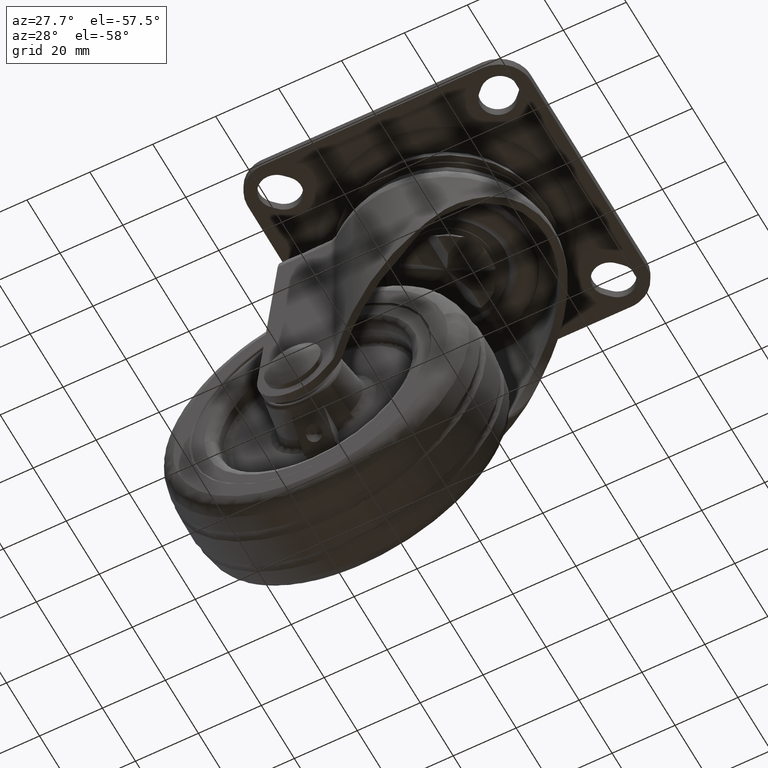
[diagram: clean part render]
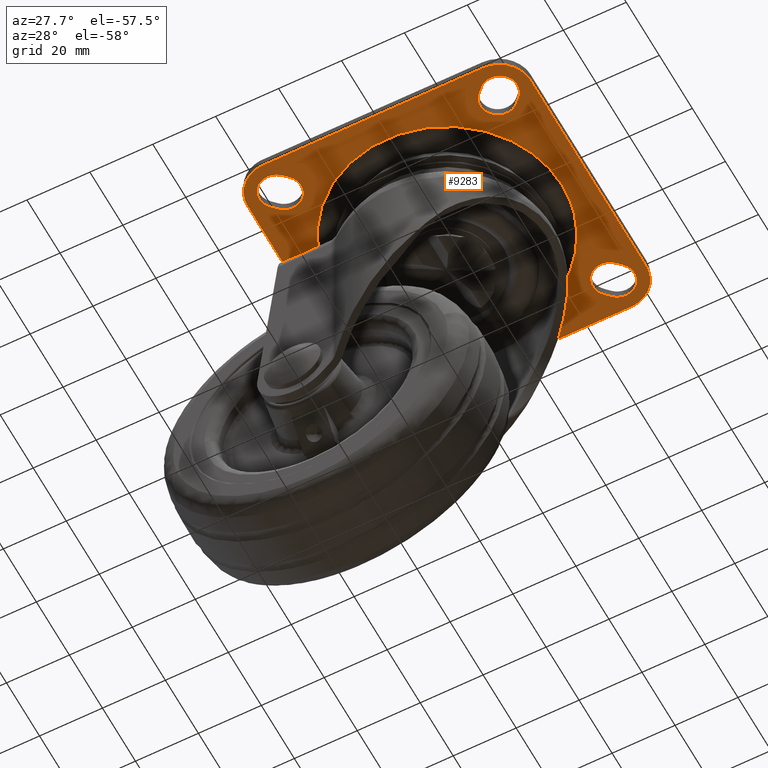
[diagram: same view with one face highlighted and labeled with its STEP entity id]
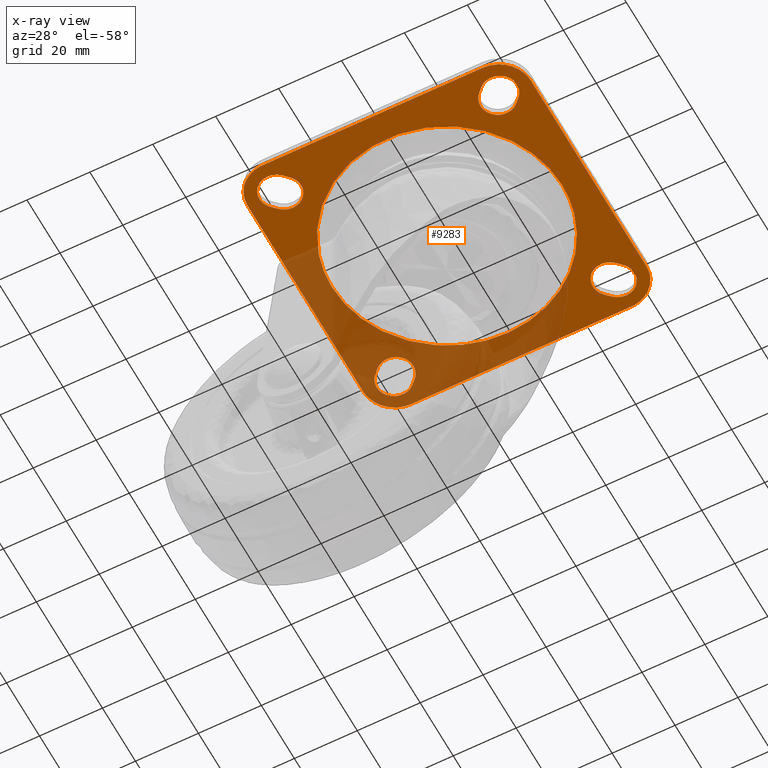
[diagram: x-ray of the same camera — body ghosted, the highlighted face saturated]
A machine part, auxiliary view. The second image highlights one B-rep face of the part: STEP entity #9283.
The next image is the same camera in x-ray: the body ghosted, the highlighted face saturated — about 34% of this face is hidden behind the body in this view.
In plain terms, the highlighted face is a freeform B-spline surface patch.
Its self-contained STEP definition (entity closure, byte-faithful):
#8045=CARTESIAN_POINT('',(30.905564445954870,-19.613267598915900,-3.000000000131471));
#8046=VERTEX_POINT('',#8045);
#8060=CARTESIAN_POINT('',(-36.603745431800299,0.0,-2.999999999999889));
#8061=VERTEX_POINT('',#8060);
#8062=CARTESIAN_POINT('',(30.905564445954870,-19.613267598915900,-3.000000000131471));
#8063=CARTESIAN_POINT('',(29.787315397197609,-21.375722503216579,-3.000000000130379));
#8064=CARTESIAN_POINT('',(27.733423739628002,-24.071178774103341,-3.000000000128121));
#8065=CARTESIAN_POINT('',(24.154701531728438,-27.621506454469639,-3.000000000123483));
#8066=CARTESIAN_POINT('',(20.850915993230821,-30.189048237103599,-3.000000000118960));
#8067=CARTESIAN_POINT('',(16.955171783251931,-32.537073784274583,-3.000000000113098));
#8068=CARTESIAN_POINT('',(13.366132347802120,-34.157860916406207,-3.000000000107612));
#8069=CARTESIAN_POINT('',(9.157581449049845,-35.522132727031241,-3.000000000100677));
#8070=CARTESIAN_POINT('',(4.453286458631463,-36.477211060169253,-3.000000000092684));
#8071=CARTESIAN_POINT('',(-1.084776392261655,-36.736695321479473,-3.000000000083102));
#8072=CARTESIAN_POINT('',(-7.142313674692727,-36.072882288631142,-3.000000000071552));
#8073=CARTESIAN_POINT('',(-12.423268644588470,-34.581806274959931,-3.000000000061458));
#8074=CARTESIAN_POINT('',(-16.846679383812749,-32.573487420388062,-3.000000000052413));
#8075=CARTESIAN_POINT('',(-20.289904491285579,-30.547736716381099,-3.000000000045137));
#8076=CARTESIAN_POINT('',(-23.156044389648471,-28.425060014618840,-3.000000000038940));
#8077=CARTESIAN_POINT('',(-26.253798130647791,-25.621649533418669,-3.000000000031846));
#8078=CARTESIAN_POINT('',(-28.857336133584369,-22.665203117222759,-3.000000000025714));
#8079=CARTESIAN_POINT('',(-31.360537616697322,-19.016077734783241,-3.000000000019246));
#8080=CARTESIAN_POINT('',(-33.194550829763372,-15.602996564135550,-3.000000000014164));
#8081=CARTESIAN_POINT('',(-34.983714362344983,-11.154794148786850,-3.000000000008622));
#8082=CARTESIAN_POINT('',(-36.276870795047067,-6.016171133420533,-3.000000000003625));
#8083=CARTESIAN_POINT('',(-36.603865307400390,-1.964453999867289,-3.000000000000910));
#8084=CARTESIAN_POINT('',(-36.603745431800299,0.0,-2.999999999999889));
#8085=B_SPLINE_CURVE_WITH_KNOTS('',3,(#8062,#8063,#8064,#8065,#8066,#8067,#8068,#8069,#8070,#8071,#8072,#8073,#8074,#8075,#8076,#8077,#8078,#8079,#8080,#8081,#8082,#8083,#8084),.UNSPECIFIED.,.F.,.U.,(4,1,1,1,1,1,1,1,1,1,1,1,1,1,1,1,1,1,1,1,4),(0.000000184841653,6.261790088986402,10.129381605736089,15.102004446872099,18.785427800100312,23.757988317527079,26.888951041214810,32.045731936324820,38.123147805340572,43.464179450165560,50.278450526594192,54.514421647304260,58.013636455562477,62.249583559286272,65.196310345756203,70.537274195730504,74.036495167740199,78.456635195301828,82.140028129501204,88.401865506117545,94.295226811703145),.UNSPECIFIED.);
#8086=EDGE_CURVE('',#8046,#8061,#8085,.T.);
#8088=CARTESIAN_POINT('',(-30.905564445954870,19.613267598915911,-3.000000000131471));
#8089=VERTEX_POINT('',#8088);
#8090=CARTESIAN_POINT('',(-36.603745431800299,0.0,-2.999999999999889));
#8091=CARTESIAN_POINT('',(-36.603745431764047,10.634371104901708,-3.000000000065680));
#8092=CARTESIAN_POINT('',(-30.905564445954866,19.613267598915904,-3.000000000131470));
#8100=(BOUNDED_CURVE()B_SPLINE_CURVE(2,(#8090,#8091,#8092),.UNSPECIFIED.,.F.,.U.)B_SPLINE_CURVE_WITH_KNOTS((3,3),(0.0,0.091683542668456),.UNSPECIFIED.)CURVE()GEOMETRIC_REPRESENTATION_ITEM()RATIONAL_B_SPLINE_CURVE((1.0,0.892586048302462,0.863956829594113))REPRESENTATION_ITEM(''));
#8101=EDGE_CURVE('',#8061,#8089,#8100,.T.);
#8152=CARTESIAN_POINT('',(36.603745431800299,0.0,-2.999999999999885));
#8153=VERTEX_POINT('',#8152);
#8154=CARTESIAN_POINT('',(-30.905564445954870,19.613267598915911,-3.000000000131471));
#8155=CARTESIAN_POINT('',(-29.655825249481850,21.583121856813481,-3.000000000130251));
#8156=CARTESIAN_POINT('',(-27.345690258495608,24.552146581510179,-3.000000000127661));
#8157=CARTESIAN_POINT('',(-23.006879670076209,28.645367811905938,-3.000000000121978));
#8158=CARTESIAN_POINT('',(-18.806938061296250,31.567101607545649,-3.000000000115969));
#8159=CARTESIAN_POINT('',(-13.508270740306241,34.171812071274239,-3.000000000107808));
#8160=CARTESIAN_POINT('',(-8.100536924281718,35.879955994431370,-3.000000000098956));
#8161=CARTESIAN_POINT('',(-2.668870959137326,36.616776179221212,-3.000000000089623));
#8162=CARTESIAN_POINT('',(1.818802585117492,36.623575031810553,-3.000000000081529));
#8163=CARTESIAN_POINT('',(5.732396203796799,36.224561967185323,-3.000000000074380));
#8164=CARTESIAN_POINT('',(9.942530034779169,35.328161997635192,-3.000000000065996));
#8165=CARTESIAN_POINT('',(14.939248953020970,33.585744155290158,-3.000000000056624));
#8166=CARTESIAN_POINT('',(19.552179641643939,31.101001458219489,-3.000000000046629));
#8167=CARTESIAN_POINT('',(24.040097606208079,27.759732086491159,-3.000000000037129));
#8168=CARTESIAN_POINT('',(27.637046284136311,24.213166703834030,-3.000000000028328));
#8169=CARTESIAN_POINT('',(30.545814000988759,20.318484925147839,-3.000000000021475));
#8170=CARTESIAN_POINT('',(33.044532826175192,16.012650110465991,-3.000000000014607));
#8171=CARTESIAN_POINT('',(34.824913478383699,11.680506315777860,-3.000000000009192));
#8172=CARTESIAN_POINT('',(36.250387706886087,6.016074255402962,-3.000000000003663));
#8173=CARTESIAN_POINT('',(36.604000603234660,2.332814824685038,-3.000000000001102));
#8174=CARTESIAN_POINT('',(36.603745431800299,0.0,-2.999999999999885));
#8175=B_SPLINE_CURVE_WITH_KNOTS('',3,(#8154,#8155,#8156,#8157,#8158,#8159,#8160,#8161,#8162,#8163,#8164,#8165,#8166,#8167,#8168,#8169,#8170,#8171,#8172,#8173,#8174),.UNSPECIFIED.,.F.,.U.,(4,1,1,1,1,1,1,1,1,1,1,1,1,1,1,1,1,1,4),(0.000000184757923,6.998470592712309,11.234398638134740,17.864572112646830,22.284628750901689,28.914830994659820,34.808291380430873,38.675687594837846,42.359081941542122,46.595027414258134,51.567639285571389,58.197826929789173,62.249583559278797,68.327221172436396,73.299842858226327,76.799048594699101,83.245080099375031,87.296838358724600,94.295226811703060),.UNSPECIFIED.);
#8176=EDGE_CURVE('',#8089,#8153,#8175,.T.);
#8178=CARTESIAN_POINT('',(36.603745431800299,0.0,-2.999999999999885));
#8179=CARTESIAN_POINT('',(36.603745431764040,-10.634371104901703,-3.000000000065677));
#8180=CARTESIAN_POINT('',(30.905564445954870,-19.613267598915900,-3.000000000131472));
#8188=(BOUNDED_CURVE()B_SPLINE_CURVE(2,(#8178,#8179,#8180),.UNSPECIFIED.,.F.,.U.)B_SPLINE_CURVE_WITH_KNOTS((3,3),(0.500000000000000,0.591683542668456),.UNSPECIFIED.)CURVE()GEOMETRIC_REPRESENTATION_ITEM()RATIONAL_B_SPLINE_CURVE((1.0,0.892586048302462,0.863956829594113))REPRESENTATION_ITEM(''));
#8189=EDGE_CURVE('',#8153,#8046,#8188,.T.);
#8375=CARTESIAN_POINT('',(-37.889084999999902,30.110913000000050,-3.0));
#8376=VERTEX_POINT('',#8375);
#8406=CARTESIAN_POINT('',(-30.110912771351401,37.889087364403402,-3.0));
#8407=VERTEX_POINT('',#8406);
#8413=CARTESIAN_POINT('',(-37.889084999999902,30.110913000000050,-3.0));
#8414=CARTESIAN_POINT('',(-37.491572377444328,29.712958400361678,-2.999999999999999));
#8415=CARTESIAN_POINT('',(-36.775008532173857,29.188942948732379,-3.000000000000003));
#8416=CARTESIAN_POINT('',(-35.669259562997617,28.730973430217091,-2.999999999999996));
#8417=CARTESIAN_POINT('',(-34.721827537446842,28.518202043160372,-3.000000000000004));
#8418=CARTESIAN_POINT('',(-33.683439246631167,28.473561575528521,-3.000000000000001));
#8419=CARTESIAN_POINT('',(-32.476166671733047,28.660094381410481,-3.0));
#8420=CARTESIAN_POINT('',(-31.322511595017641,29.137985027087019,-3.0));
#8421=CARTESIAN_POINT('',(-30.351529098583999,29.839976187081220,-3.000000000000004));
#8422=CARTESIAN_POINT('',(-29.701473038138491,30.531234238692569,-3.000000000000028));
#8423=CARTESIAN_POINT('',(-29.170507447105638,31.315427841803022,-2.999999999999986));
#8424=CARTESIAN_POINT('',(-28.699564276310550,32.343081331219842,-3.000000000000010));
#8425=CARTESIAN_POINT('',(-28.467646367839130,33.547962558248322,-2.999999999999994));
#8426=CARTESIAN_POINT('',(-28.525853639561230,34.902461955974843,-3.000000000000012));
#8427=CARTESIAN_POINT('',(-28.804379267141051,35.908975950178487,-2.999999999999979));
#8428=CARTESIAN_POINT('',(-29.334877352744758,36.978949383265487,-3.000000000000036));
#8429=CARTESIAN_POINT('',(-29.760773058118041,37.539213025936313,-2.999999999999749));
#8430=CARTESIAN_POINT('',(-30.110912771351401,37.889087364403402,-3.0));
#8431=B_SPLINE_CURVE_WITH_KNOTS('',3,(#8413,#8414,#8415,#8416,#8417,#8418,#8419,#8420,#8421,#8422,#8423,#8424,#8425,#8426,#8427,#8428,#8429,#8430),.UNSPECIFIED.,.F.,.U.,(4,1,1,1,1,1,1,1,1,1,1,1,1,1,1,4),(0.000000561294488,1.687314581986886,2.632284898637074,3.577252659329666,4.589710451386246,5.737169881050942,7.222104027275808,8.302036132589679,9.314304590971339,10.056826325991720,11.136719818766190,12.689162098801040,13.701611747089110,15.186561999662130,15.793979300991561,17.278865253458541),.UNSPECIFIED.);
#8432=EDGE_CURVE('',#8376,#8407,#8431,.T.);
#8442=CARTESIAN_POINT('',(-39.389087568035507,31.610912974983499,-3.0));
#8443=VERTEX_POINT('',#8442);
#8457=CARTESIAN_POINT('',(-39.389087568035507,31.610912974983499,-3.0));
#8458=CARTESIAN_POINT('',(-37.889084999999902,30.110913000000050,-3.0));
#8459=QUASI_UNIFORM_CURVE('',1,(#8457,#8458),.UNSPECIFIED.,.F.,.U.);
#8460=EDGE_CURVE('',#8443,#8376,#8459,.T.);
#8483=CARTESIAN_POINT('',(-31.610912771351401,39.389087364403402,-3.0));
#8484=VERTEX_POINT('',#8483);
#8513=CARTESIAN_POINT('',(-31.610912771351401,39.389087364403402,-3.0));
#8514=CARTESIAN_POINT('',(-32.056085728512151,39.834891589166311,-3.000000000000003));
#8515=CARTESIAN_POINT('',(-32.877776669445453,40.412676803550561,-2.999999999999996));
#8516=CARTESIAN_POINT('',(-34.325271490711138,40.930602460496331,-3.000000000000003));
#8517=CARTESIAN_POINT('',(-35.592692761770152,41.055575707466758,-2.999999999999997));
#8518=CARTESIAN_POINT('',(-36.755560922293910,40.882752766398667,-3.000000000000003));
#8519=CARTESIAN_POINT('',(-37.826689734037352,40.529081665951928,-3.000000000000003));
#8520=CARTESIAN_POINT('',(-38.885910623446229,39.911766293440017,-2.999999999999991));
#8521=CARTESIAN_POINT('',(-39.767415952589950,39.030121892625417,-2.999999999999997));
#8522=CARTESIAN_POINT('',(-40.351255619137142,38.144488824611237,-3.000000000000011));
#8523=CARTESIAN_POINT('',(-40.744802795305397,37.256788516731952,-2.999999999999944));
#8524=CARTESIAN_POINT('',(-40.969400735996331,36.310976012052272,-3.000000000000149));
#8525=CARTESIAN_POINT('',(-41.031795233038800,35.184141250779497,-2.999999999999902));
#8526=CARTESIAN_POINT('',(-40.861926480311439,34.085603260476638,-3.000000000000039));
#8527=CARTESIAN_POINT('',(-40.349704521204622,32.781728899725337,-2.999999999999978));
#8528=CARTESIAN_POINT('',(-39.802972915493847,32.024329561762627,-3.000000000000008));
#8529=CARTESIAN_POINT('',(-39.389087568035507,31.610912974983499,-3.0));
#8530=B_SPLINE_CURVE_WITH_KNOTS('',3,(#8513,#8514,#8515,#8516,#8517,#8518,#8519,#8520,#8521,#8522,#8523,#8524,#8525,#8526,#8527,#8528,#8529),.UNSPECIFIED.,.F.,.U.,(4,1,1,1,1,1,1,1,1,1,1,1,1,1,4),(0.000000561134716,1.889846948349220,2.969783505581555,4.589711056406909,5.669646485489823,6.479592328126881,7.964569540873665,9.314305819115614,10.191778023138610,11.136721287292350,12.216680095416001,13.094146995316740,14.511581763016309,15.524050083305340,17.278867531817010),.UNSPECIFIED.);
#8531=EDGE_CURVE('',#8484,#8443,#8530,.T.);
#8548=CARTESIAN_POINT('',(-30.110912771351401,37.889087364403402,-3.0));
#8549=CARTESIAN_POINT('',(-31.610912771351401,39.389087364403402,-3.0));
#8550=QUASI_UNIFORM_CURVE('',1,(#8548,#8549),.UNSPECIFIED.,.F.,.U.);
#8551=EDGE_CURVE('',#8407,#8484,#8550,.T.);
#8561=CARTESIAN_POINT('',(37.889086753506952,30.110912160455051,-3.0));
#8562=VERTEX_POINT('',#8561);
#8577=CARTESIAN_POINT('',(39.389084999999987,31.610906000000099,-3.0));
#8578=VERTEX_POINT('',#8577);
#8584=CARTESIAN_POINT('',(37.889086753506952,30.110912160455051,-3.0));
#8585=CARTESIAN_POINT('',(39.389084999999987,31.610906000000099,-3.0));
#8586=QUASI_UNIFORM_CURVE('',1,(#8584,#8585),.UNSPECIFIED.,.F.,.U.);
#8587=EDGE_CURVE('',#8562,#8578,#8586,.T.);
#8610=CARTESIAN_POINT('',(30.110906000000000,37.889082000000052,-3.0));
#8611=VERTEX_POINT('',#8610);
#8640=CARTESIAN_POINT('',(30.110906000000000,37.889082000000052,-3.0));
#8641=CARTESIAN_POINT('',(29.665080845603651,37.443923320193512,-2.999999999999990));
#8642=CARTESIAN_POINT('',(29.113597527850128,36.659550101118121,-3.000000000000018));
#8643=CARTESIAN_POINT('',(28.657357354388161,35.431819706810742,-2.999999999999985));
#8644=CARTESIAN_POINT('',(28.475643849347470,34.384928358960437,-3.000000000000020));
#8645=CARTESIAN_POINT('',(28.505525198525731,33.412669832581692,-3.000000000000003));
#8646=CARTESIAN_POINT('',(28.694628817338341,32.462022531623226,-3.000000000000008));
#8647=CARTESIAN_POINT('',(28.978195354041020,31.699186214777999,-2.999999999999993));
#8648=CARTESIAN_POINT('',(29.444845674765030,30.875443869020469,-2.999999999999967));
#8649=CARTESIAN_POINT('',(30.052247645182739,30.116508317275020,-3.000000000000148));
#8650=CARTESIAN_POINT('',(31.043844048811241,29.292223969500881,-2.999999999999884));
#8651=CARTESIAN_POINT('',(32.215684698026543,28.738055230120221,-3.000000000000059));
#8652=CARTESIAN_POINT('',(33.523958046914771,28.477929847489460,-2.999999999999959));
#8653=CARTESIAN_POINT('',(34.656354312436022,28.498779033662291,-3.000000000000005));
#8654=CARTESIAN_POINT('',(35.757062636472668,28.753102940257460,-2.999999999999993));
#8655=CARTESIAN_POINT('',(36.852458148568140,29.238634834852739,-3.000000000000108));
#8656=CARTESIAN_POINT('',(37.539199504127787,29.760797056195219,-2.999999999999726));
#8657=CARTESIAN_POINT('',(37.889086753506952,30.110912160455051,-3.0));
#8658=B_SPLINE_CURVE_WITH_KNOTS('',3,(#8640,#8641,#8642,#8643,#8644,#8645,#8646,#8647,#8648,#8649,#8650,#8651,#8652,#8653,#8654,#8655,#8656,#8657),.UNSPECIFIED.,.F.,.U.,(4,1,1,1,1,1,1,1,1,1,1,1,1,1,1,4),(0.000000561137476,1.889846043361047,2.834805126937583,3.914744311384888,5.062188677841320,5.737167889467409,6.817070736221245,7.492027810392406,8.572021230931060,9.719346178671625,11.339239355778259,12.419177902762261,13.701606991263761,14.714081521562060,15.793973818538960,17.278859255817711),.UNSPECIFIED.);
#8659=EDGE_CURVE('',#8611,#8562,#8658,.T.);
#8669=CARTESIAN_POINT('',(31.610907999999998,39.389083000000149,-3.0));
#8670=VERTEX_POINT('',#8669);
#8684=CARTESIAN_POINT('',(31.610907999999998,39.389083000000149,-3.0));
#8685=CARTESIAN_POINT('',(30.110906000000000,37.889082000000052,-3.0));
#8686=QUASI_UNIFORM_CURVE('',1,(#8684,#8685),.UNSPECIFIED.,.F.,.U.);
#8687=EDGE_CURVE('',#8670,#8611,#8686,.T.);
#8732=CARTESIAN_POINT('',(39.389084999999987,31.610906000000099,-3.0));
#8733=CARTESIAN_POINT('',(39.818974927976413,32.040178663415041,-3.000000000000002));
#8734=CARTESIAN_POINT('',(40.335015713517677,32.764614735352922,-3.000000000000004));
#8735=CARTESIAN_POINT('',(40.787290012377063,33.895783335308430,-2.999999999999995));
#8736=CARTESIAN_POINT('',(41.018570572680282,34.955389043601002,-3.000000000000003));
#8737=CARTESIAN_POINT('',(41.011563738477349,36.089612446980517,-2.999999999999996));
#8738=CARTESIAN_POINT('',(40.754216824118608,37.235323183166770,-3.000000000000004));
#8739=CARTESIAN_POINT('',(40.311320880315257,38.251407112912617,-2.999999999999993));
#8740=CARTESIAN_POINT('',(39.648288199751597,39.168695861334243,-3.000000000000009));
#8741=CARTESIAN_POINT('',(38.882451417105081,39.871334531462452,-2.999999999999971));
#8742=CARTESIAN_POINT('',(38.027731491752171,40.419981810502797,-3.000000000000020));
#8743=CARTESIAN_POINT('',(37.063980474741683,40.812271261821721,-2.999999999999992));
#8744=CARTESIAN_POINT('',(35.797128339724090,41.048353866578637,-3.000000000000004));
#8745=CARTESIAN_POINT('',(34.457860851592812,40.966006872539417,-3.000000000000003));
#8746=CARTESIAN_POINT('',(32.933793221295943,40.452143813962252,-2.999999999999988));
#8747=CARTESIAN_POINT('',(32.056091599334927,39.834857472417397,-3.000000000000036));
#8748=CARTESIAN_POINT('',(31.610907999999998,39.389083000000149,-3.0));
#8749=B_SPLINE_CURVE_WITH_KNOTS('',3,(#8732,#8733,#8734,#8735,#8736,#8737,#8738,#8739,#8740,#8741,#8742,#8743,#8744,#8745,#8746,#8747,#8748),.UNSPECIFIED.,.F.,.U.,(4,1,1,1,1,1,1,1,1,1,1,1,1,1,4),(0.000000474200959,1.822355194775343,2.632327167274093,3.644784653283601,5.062208638403634,6.007067757243473,7.154524346132854,8.369453456780398,9.381913317567889,10.259349455652020,11.406763360466980,12.486638791092560,14.106586279034239,15.389027765301069,17.278883413378939),.UNSPECIFIED.);
#8750=EDGE_CURVE('',#8578,#8670,#8749,.T.);
#8760=CARTESIAN_POINT('',(30.110912431964501,-37.889087025016600,-3.0));
#8761=VERTEX_POINT('',#8760);
#8776=CARTESIAN_POINT('',(31.610914999999999,-39.389087000000053,-3.0));
#8777=VERTEX_POINT('',#8776);
#8783=CARTESIAN_POINT('',(30.110912431964501,-37.889087025016600,-3.0));
#8784=CARTESIAN_POINT('',(31.610914999999999,-39.389087000000053,-3.0));
#8785=QUASI_UNIFORM_CURVE('',1,(#8783,#8784),.UNSPECIFIED.,.F.,.U.);
#8786=EDGE_CURVE('',#8761,#8777,#8785,.T.);
#8809=CARTESIAN_POINT('',(37.889088999999998,-30.110912000000098,-3.0));
#8810=VERTEX_POINT('',#8809);
#8840=CARTESIAN_POINT('',(37.889088999999998,-30.110912000000098,-3.0));
#8841=CARTESIAN_POINT('',(37.412187054768317,-29.633163029626321,-3.000000000000002));
#8842=CARTESIAN_POINT('',(36.487172334233520,-28.999747726054679,-3.000000000000004));
#8843=CARTESIAN_POINT('',(35.124048514018611,-28.577299277463680,-2.999999999999996));
#8844=CARTESIAN_POINT('',(33.865563765984483,-28.453239689438650,-3.000000000000010));
#8845=CARTESIAN_POINT('',(32.693812170468711,-28.605005820755629,-2.999999999999977));
#8846=CARTESIAN_POINT('',(31.637392017992379,-29.005324221614590,-3.000000000000036));
#8847=CARTESIAN_POINT('',(30.701727983060110,-29.550473710869429,-2.999999999999938));
#8848=CARTESIAN_POINT('',(29.839720641140911,-30.322169259581081,-3.000000000000056));
#8849=CARTESIAN_POINT('',(29.032898286653928,-31.498108218026641,-3.000000000000003));
#8850=CARTESIAN_POINT('',(28.588437364026198,-32.739996031242477,-2.999999999999909));
#8851=CARTESIAN_POINT('',(28.446722493254260,-34.179997365628047,-3.000000000000063));
#8852=CARTESIAN_POINT('',(28.650127216562780,-35.552304826767177,-2.999999999999981));
#8853=CARTESIAN_POINT('',(29.246824234490632,-36.875972662500843,-2.999999999999979));
#8854=CARTESIAN_POINT('',(29.808602291344322,-37.586875455664170,-3.000000000000008));
#8855=CARTESIAN_POINT('',(30.110912431964501,-37.889087025016600,-3.0));
#8856=B_SPLINE_CURVE_WITH_KNOTS('',3,(#8840,#8841,#8842,#8843,#8844,#8845,#8846,#8847,#8848,#8849,#8850,#8851,#8852,#8853,#8854,#8855),.UNSPECIFIED.,.F.,.U.,(4,1,1,1,1,1,1,1,1,1,1,1,1,4),(0.000000474339519,2.024861753567535,3.307291026697756,4.252243965382688,5.804547896877693,6.817019041546692,7.626993977110665,9.044414046047407,10.259341296716480,11.879182138209250,12.959109905811550,14.579046575139410,15.996474761060099,17.278869671623980),.UNSPECIFIED.);
#8857=EDGE_CURVE('',#8810,#8761,#8856,.T.);
#8867=CARTESIAN_POINT('',(39.389088999999899,-31.610912000000098,-3.0));
#8868=VERTEX_POINT('',#8867);
#8882=CARTESIAN_POINT('',(39.389088999999899,-31.610912000000098,-3.0));
#8883=CARTESIAN_POINT('',(37.889088999999998,-30.110912000000098,-3.0));
#8884=QUASI_UNIFORM_CURVE('',1,(#8882,#8883),.UNSPECIFIED.,.F.,.U.);
#8885=EDGE_CURVE('',#8868,#8810,#8884,.T.);
#8931=CARTESIAN_POINT('',(31.610914999999999,-39.389087000000053,-3.0));
#8932=CARTESIAN_POINT('',(32.056074333590608,-39.834906333839108,-3.000000000000002));
#8933=CARTESIAN_POINT('',(32.877788525511612,-40.412681642649332,-2.999999999999995));
#8934=CARTESIAN_POINT('',(34.112420821156249,-40.854303363505913,-3.000000000000016));
#8935=CARTESIAN_POINT('',(35.115693539511398,-41.015732871931370,-2.999999999999986));
#8936=CARTESIAN_POINT('',(36.245234019398488,-40.995048331819092,-3.000000000000007));
#8937=CARTESIAN_POINT('',(37.479466738299912,-40.693967467134229,-3.000000000000007));
#8938=CARTESIAN_POINT('',(38.598896137409142,-40.095489556763702,-2.999999999999983));
#8939=CARTESIAN_POINT('',(39.544852028571107,-39.289624041441563,-3.000000000000068));
#8940=CARTESIAN_POINT('',(40.244835790860883,-38.369603589674689,-2.999999999999930));
#8941=CARTESIAN_POINT('',(40.800369460921097,-37.156903876290002,-3.000000000000023));
#8942=CARTESIAN_POINT('',(41.071189927889051,-35.751212043420423,-2.999999999999911));
#8943=CARTESIAN_POINT('',(40.917378427811961,-34.189369306021227,-3.000000000000132));
#8944=CARTESIAN_POINT('',(40.343887305071419,-32.755965019068029,-2.999999999999775));
#8945=CARTESIAN_POINT('',(39.739201539405030,-31.960795602990881,-3.000000000000317));
#8946=CARTESIAN_POINT('',(39.389088999999899,-31.610912000000098,-3.0));
#8947=B_SPLINE_CURVE_WITH_KNOTS('',3,(#8931,#8932,#8933,#8934,#8935,#8936,#8937,#8938,#8939,#8940,#8941,#8942,#8943,#8944,#8945,#8946),.UNSPECIFIED.,.F.,.U.,(4,1,1,1,1,1,1,1,1,1,1,1,1,4),(0.000000561144823,1.889846757585914,2.969783205742381,3.914745791101918,4.927199691007775,6.344629295130240,7.694521684536353,8.706838787154171,10.056826636797631,11.136720162764700,12.689162490690510,14.309072787765739,15.793979788490621,17.278865787075770),.UNSPECIFIED.);
#8948=EDGE_CURVE('',#8777,#8868,#8947,.T.);
#8958=CARTESIAN_POINT('',(-31.610913246492998,-39.389087839545113,-3.0));
#8959=VERTEX_POINT('',#8958);
#8974=CARTESIAN_POINT('',(-30.110913000000000,-37.889092000000048,-3.0));
#8975=VERTEX_POINT('',#8974);
#8981=CARTESIAN_POINT('',(-31.610913246492998,-39.389087839545113,-3.0));
#8982=CARTESIAN_POINT('',(-30.110913000000000,-37.889092000000048,-3.0));
#8983=QUASI_UNIFORM_CURVE('',1,(#8981,#8982),.UNSPECIFIED.,.F.,.U.);
#8984=EDGE_CURVE('',#8959,#8975,#8983,.T.);
#9007=CARTESIAN_POINT('',(-39.389085999999899,-31.610911000000090,-3.0));
#9008=VERTEX_POINT('',#9007);
#9038=CARTESIAN_POINT('',(-39.389085999999899,-31.610911000000090,-3.0));
#9039=CARTESIAN_POINT('',(-39.675486029280421,-31.897216452977709,-3.0));
#9040=CARTESIAN_POINT('',(-40.156261355307898,-32.498152431119237,-3.0));
#9041=CARTESIAN_POINT('',(-40.756265028590697,-33.689491301399897,-3.000000000000012));
#9042=CARTESIAN_POINT('',(-41.032729402480527,-34.957211093200293,-2.999999999999972));
#9043=CARTESIAN_POINT('',(-40.985058809251349,-36.244960522384929,-3.000000000000012));
#9044=CARTESIAN_POINT('',(-40.692725246068598,-37.476764499058710,-3.000000000000064));
#9045=CARTESIAN_POINT('',(-40.116740605751097,-38.587064111529422,-2.999999999999963));
#9046=CARTESIAN_POINT('',(-39.403087595149692,-39.403789744528282,-3.000000000000013));
#9047=CARTESIAN_POINT('',(-38.717021531643177,-39.988332466555903,-3.000000000000001));
#9048=CARTESIAN_POINT('',(-37.966424403831411,-40.450868632512993,-3.0));
#9049=CARTESIAN_POINT('',(-37.081543484976223,-40.792150228195311,-3.000000000000003));
#9050=CARTESIAN_POINT('',(-36.198752710749652,-40.979050794236031,-2.999999999999997));
#9051=CARTESIAN_POINT('',(-35.251476270478129,-41.025597210615992,-3.000000000000028));
#9052=CARTESIAN_POINT('',(-34.086534575759863,-40.867550008054543,-2.999999999999860));
#9053=CARTESIAN_POINT('',(-32.794397087058769,-40.369073578146541,-3.000000000000310));
#9054=CARTESIAN_POINT('',(-31.976701357461341,-39.755104776903622,-2.999999999999715));
#9055=CARTESIAN_POINT('',(-31.610913246492998,-39.389087839545113,-3.0));
#9056=B_SPLINE_CURVE_WITH_KNOTS('',3,(#9038,#9039,#9040,#9041,#9042,#9043,#9044,#9045,#9046,#9047,#9048,#9049,#9050,#9051,#9052,#9053,#9054,#9055),.UNSPECIFIED.,.F.,.U.,(4,1,1,1,1,1,1,1,1,1,1,1,1,1,1,4),(0.000000474347601,1.214882834581614,2.294835694170237,3.982272629638853,5.062204552237008,6.142033760473707,7.761976093554264,8.774429754991653,9.381905743283234,10.461850946316231,11.406754152427130,12.216674930070690,13.161617993746111,14.241565680526691,15.726509339829541,17.278869463682231),.UNSPECIFIED.);
#9057=EDGE_CURVE('',#9008,#8959,#9056,.T.);
#9067=CARTESIAN_POINT('',(-37.889090000000003,-30.110915000000102,-3.0));
#9068=VERTEX_POINT('',#9067);
#9082=CARTESIAN_POINT('',(-37.889090000000003,-30.110915000000102,-3.0));
#9083=CARTESIAN_POINT('',(-39.389085999999899,-31.610911000000090,-3.0));
#9084=QUASI_UNIFORM_CURVE('',1,(#9082,#9083),.UNSPECIFIED.,.F.,.U.);
#9085=EDGE_CURVE('',#9068,#9008,#9084,.T.);
#9131=CARTESIAN_POINT('',(-30.110913000000000,-37.889092000000048,-3.0));
#9132=CARTESIAN_POINT('',(-29.633115756818491,-37.412201003853539,-2.999999999999996));
#9133=CARTESIAN_POINT('',(-29.090310613192489,-36.619321969445330,-3.000000000000010));
#9134=CARTESIAN_POINT('',(-28.664843038321820,-35.429741967448741,-2.999999999999990));
#9135=CARTESIAN_POINT('',(-28.499478454162460,-34.541746083197459,-3.000000000000028));
#9136=CARTESIAN_POINT('',(-28.487864537490701,-33.593381098905340,-2.999999999999993));
#9137=CARTESIAN_POINT('',(-28.667092105918499,-32.478595795303427,-3.000000000000003));
#9138=CARTESIAN_POINT('',(-29.105471484990002,-31.382440718890781,-3.000000000000006));
#9139=CARTESIAN_POINT('',(-29.847538311828160,-30.328927336110649,-2.999999999999978));
#9140=CARTESIAN_POINT('',(-30.748777252487251,-29.501860540414398,-3.000000000000068));
#9141=CARTESIAN_POINT('',(-31.816765059042829,-28.905548580474679,-2.999999999999874));
#9142=CARTESIAN_POINT('',(-32.833549778843363,-28.597181248044620,-3.000000000000214));
#9143=CARTESIAN_POINT('',(-33.773904127825553,-28.481208559516372,-2.999999999999777));
#9144=CARTESIAN_POINT('',(-34.744276161398552,-28.516890440120811,-3.000000000000119));
#9145=CARTESIAN_POINT('',(-35.780202229433627,-28.756213372946402,-3.0));
#9146=CARTESIAN_POINT('',(-36.890108714841567,-29.264573452768531,-2.999999999999890));
#9147=CARTESIAN_POINT('',(-37.555099436117487,-29.776740243416722,-3.000000000000253));
#9148=CARTESIAN_POINT('',(-37.889090000000003,-30.110915000000102,-3.0));
#9149=B_SPLINE_CURVE_WITH_KNOTS('',3,(#9131,#9132,#9133,#9134,#9135,#9136,#9137,#9138,#9139,#9140,#9141,#9142,#9143,#9144,#9145,#9146,#9147,#9148),.UNSPECIFIED.,.F.,.U.,(4,1,1,1,1,1,1,1,1,1,1,1,1,1,1,4),(0.000000474223366,2.024862700784325,2.834816380417525,3.779770216780328,4.724713921758903,5.669678246167790,7.154522003833606,8.234459920622715,9.516898379923514,10.799351251571700,11.879187696718891,12.689147530358930,13.634103996413000,14.781549900875820,15.861504015282710,17.278877756416151),.UNSPECIFIED.);
#9150=EDGE_CURVE('',#8975,#9068,#9149,.T.);
#9155=CARTESIAN_POINT('',(-49.495499825562533,49.495499825562533,-3.0));
#9156=CARTESIAN_POINT('',(49.495502239550653,49.495499825562533,-3.0));
#9157=CARTESIAN_POINT('',(-49.495499825562533,-49.495502239550653,-3.0));
#9158=CARTESIAN_POINT('',(49.495502239550653,-49.495502239550653,-3.0));
#9159=B_SPLINE_SURFACE_WITH_KNOTS('',1,1,((#9155,#9157),(#9156,#9158)),.UNSPECIFIED.,.F.,.F.,.U.,(2,2),(2,2),(0.0,98.991002065113179),(0.0,98.991002065113179),.UNSPECIFIED.);
#9160=CARTESIAN_POINT('',(34.999999476401200,45.0,-3.0));
#9161=VERTEX_POINT('',#9160);
#9162=CARTESIAN_POINT('',(-35.000000523598807,45.0,-3.0));
#9163=VERTEX_POINT('',#9162);
#9164=CARTESIAN_POINT('',(34.999999476401200,45.0,-3.0));
#9165=CARTESIAN_POINT('',(-35.000000523598807,45.0,-3.0));
#9166=QUASI_UNIFORM_CURVE('',1,(#9164,#9165),.UNSPECIFIED.,.F.,.U.);
#9167=EDGE_CURVE('',#9161,#9163,#9166,.T.);
#9168=ORIENTED_EDGE('',*,*,#9167,.F.);
#9169=CARTESIAN_POINT('',(45.0,35.0,-3.0));
#9170=VERTEX_POINT('',#9169);
#9171=CARTESIAN_POINT('',(45.0,35.0,-3.0));
#9172=CARTESIAN_POINT('',(45.000550086305687,36.022738633934154,-3.000000000000002));
#9173=CARTESIAN_POINT('',(44.784759571326042,37.413215359861859,-2.999999999999996));
#9174=CARTESIAN_POINT('',(44.102660387320967,39.213924232222823,-3.000000000000006));
#9175=CARTESIAN_POINT('',(43.398290741818478,40.512502939248748,-2.999999999999994));
#9176=CARTESIAN_POINT('',(42.185994720073722,42.066322115165477,-3.000000000000008));
#9177=CARTESIAN_POINT('',(40.504678076338777,43.463483486243319,-2.999999999999968));
#9178=CARTESIAN_POINT('',(38.692287638918167,44.347865155956171,-3.000000000000030));
#9179=CARTESIAN_POINT('',(36.881615011673617,44.872872995250070,-2.999999999999968));
#9180=CARTESIAN_POINT('',(35.736322557601547,45.000151468347447,-3.000000000000042));
#9181=CARTESIAN_POINT('',(34.999999476401200,45.0,-3.0));
#9182=B_SPLINE_CURVE_WITH_KNOTS('',3,(#9171,#9172,#9173,#9174,#9175,#9176,#9177,#9178,#9179,#9180,#9181),.UNSPECIFIED.,.F.,.U.,(4,1,1,1,1,1,1,1,4),(0.000000136545204,3.067976256122506,4.172455326681401,5.767821772394445,7.485924221519243,10.062966178752941,12.271931894965510,13.499127413294371,15.708062352364699),.UNSPECIFIED.);
#9183=EDGE_CURVE('',#9170,#9161,#9182,.T.);
#9184=ORIENTED_EDGE('',*,*,#9183,.F.);
#9185=CARTESIAN_POINT('',(45.0,-35.0,-3.0));
#9186=VERTEX_POINT('',#9185);
#9187=CARTESIAN_POINT('',(45.0,-35.0,-3.0));
#9188=CARTESIAN_POINT('',(45.0,35.0,-3.0));
#9189=QUASI_UNIFORM_CURVE('',1,(#9187,#9188),.UNSPECIFIED.,.F.,.U.);
#9190=EDGE_CURVE('',#9186,#9170,#9189,.T.);
#9191=ORIENTED_EDGE('',*,*,#9190,.F.);
#9192=CARTESIAN_POINT('',(35.0,-45.0,-3.0));
#9193=VERTEX_POINT('',#9192);
#9194=CARTESIAN_POINT('',(35.0,-45.000000000000007,-3.0));
#9195=CARTESIAN_POINT('',(45.000000000000014,-45.000000000000014,-3.0));
#9196=CARTESIAN_POINT('',(45.000000000000007,-35.0,-3.0));
#9204=(BOUNDED_CURVE()B_SPLINE_CURVE(2,(#9194,#9195,#9196),.UNSPECIFIED.,.F.,.U.)CURVE()GEOMETRIC_REPRESENTATION_ITEM()QUASI_UNIFORM_CURVE()RATIONAL_B_SPLINE_CURVE((1.0,0.707106781186548,1.0))REPRESENTATION_ITEM(''));
#9205=EDGE_CURVE('',#9193,#9186,#9204,.T.);
#9206=ORIENTED_EDGE('',*,*,#9205,.F.);
#9207=CARTESIAN_POINT('',(-35.000000523598807,-45.0,-3.0));
#9208=VERTEX_POINT('',#9207);
#9209=CARTESIAN_POINT('',(-35.000000523598807,-45.0,-3.0));
#9210=CARTESIAN_POINT('',(35.0,-45.0,-3.0));
#9211=QUASI_UNIFORM_CURVE('',1,(#9209,#9210),.UNSPECIFIED.,.F.,.U.);
#9212=EDGE_CURVE('',#9208,#9193,#9211,.T.);
#9213=ORIENTED_EDGE('',*,*,#9212,.F.);
#9214=CARTESIAN_POINT('',(-45.0,-35.0,-3.0));
#9215=VERTEX_POINT('',#9214);
#9216=CARTESIAN_POINT('',(-45.000000000000007,-35.0,-3.0));
#9217=CARTESIAN_POINT('',(-45.000000000000007,-44.999999476401221,-3.000000000000000));
#9218=CARTESIAN_POINT('',(-35.000000523598807,-44.999999999999993,-3.0));
#9226=(BOUNDED_CURVE()B_SPLINE_CURVE(2,(#9216,#9217,#9218),.UNSPECIFIED.,.F.,.U.)CURVE()GEOMETRIC_REPRESENTATION_ITEM()QUASI_UNIFORM_CURVE()RATIONAL_B_SPLINE_CURVE((1.0,0.707106799698560,1.0))REPRESENTATION_ITEM(''));
#9227=EDGE_CURVE('',#9215,#9208,#9226,.T.);
#9228=ORIENTED_EDGE('',*,*,#9227,.F.);
#9229=CARTESIAN_POINT('',(-45.0,34.999999127335350,-3.0));
#9230=VERTEX_POINT('',#9229);
#9231=CARTESIAN_POINT('',(-45.0,34.999999127335350,-3.0));
#9232=CARTESIAN_POINT('',(-45.0,-35.0,-3.0));
#9233=QUASI_UNIFORM_CURVE('',1,(#9231,#9232),.UNSPECIFIED.,.F.,.U.);
#9234=EDGE_CURVE('',#9230,#9215,#9233,.T.);
#9235=ORIENTED_EDGE('',*,*,#9234,.F.);
#9236=CARTESIAN_POINT('',(-35.000000523598807,45.0,-3.0));
#9237=CARTESIAN_POINT('',(-35.613585405034350,45.000061138482003,-3.000000000000005));
#9238=CARTESIAN_POINT('',(-36.799842886433822,44.890482794860283,-2.999999999999997));
#9239=CARTESIAN_POINT('',(-38.382648619782643,44.452464381834801,-3.000000000000003));
#9240=CARTESIAN_POINT('',(-39.877848152527513,43.778682610998750,-3.000000000000004));
#9241=CARTESIAN_POINT('',(-41.318281211809143,42.829003352822021,-2.999999999999988));
#9242=CARTESIAN_POINT('',(-42.789317603517972,41.393757807863572,-3.000000000000016));
#9243=CARTESIAN_POINT('',(-43.854836532510987,39.777752545077327,-2.999999999999994));
#9244=CARTESIAN_POINT('',(-44.498247982448689,38.223941422478937,-2.999999999999999));
#9245=CARTESIAN_POINT('',(-44.895178429566457,36.718013258741927,-3.000000000000016));
#9246=CARTESIAN_POINT('',(-45.000098178567747,35.654497433948507,-2.999999999999965));
#9247=CARTESIAN_POINT('',(-45.0,34.999999127335350,-3.0));
#9248=B_SPLINE_CURVE_WITH_KNOTS('',3,(#9236,#9237,#9238,#9239,#9240,#9241,#9242,#9243,#9244,#9245,#9246,#9247),.UNSPECIFIED.,.F.,.U.,(4,1,1,1,1,1,1,1,1,4),(0.000000136561109,1.840755287397684,3.558855573037375,4.908786002446469,6.749562867358197,8.713017306621261,11.044729235637170,12.517364094609050,13.744584263367010,15.708062177828269),.UNSPECIFIED.);
#9249=EDGE_CURVE('',#9163,#9230,#9248,.T.);
#9250=ORIENTED_EDGE('',*,*,#9249,.F.);
#9251=EDGE_LOOP('',(#9168,#9184,#9191,#9206,#9213,#9228,#9235,#9250));
#9252=FACE_OUTER_BOUND('',#9251,.T.);
#9253=ORIENTED_EDGE('',*,*,#8587,.T.);
#9254=ORIENTED_EDGE('',*,*,#8750,.T.);
#9255=ORIENTED_EDGE('',*,*,#8687,.T.);
#9256=ORIENTED_EDGE('',*,*,#8659,.T.);
#9257=EDGE_LOOP('',(#9253,#9254,#9255,#9256));
#9258=FACE_BOUND('',#9257,.T.);
#9259=ORIENTED_EDGE('',*,*,#8786,.T.);
#9260=ORIENTED_EDGE('',*,*,#8948,.T.);
#9261=ORIENTED_EDGE('',*,*,#8885,.T.);
#9262=ORIENTED_EDGE('',*,*,#8857,.T.);
#9263=EDGE_LOOP('',(#9259,#9260,#9261,#9262));
#9264=FACE_BOUND('',#9263,.T.);
#9265=ORIENTED_EDGE('',*,*,#8984,.T.);
#9266=ORIENTED_EDGE('',*,*,#9150,.T.);
#9267=ORIENTED_EDGE('',*,*,#9085,.T.);
#9268=ORIENTED_EDGE('',*,*,#9057,.T.);
#9269=EDGE_LOOP('',(#9265,#9266,#9267,#9268));
#9270=FACE_BOUND('',#9269,.T.);
#9271=ORIENTED_EDGE('',*,*,#8432,.T.);
#9272=ORIENTED_EDGE('',*,*,#8551,.T.);
#9273=ORIENTED_EDGE('',*,*,#8531,.T.);
#9274=ORIENTED_EDGE('',*,*,#8460,.T.);
#9275=EDGE_LOOP('',(#9271,#9272,#9273,#9274));
#9276=FACE_BOUND('',#9275,.T.);
#9277=ORIENTED_EDGE('',*,*,#8101,.F.);
#9278=ORIENTED_EDGE('',*,*,#8086,.F.);
#9279=ORIENTED_EDGE('',*,*,#8189,.F.);
#9280=ORIENTED_EDGE('',*,*,#8176,.F.);
#9281=EDGE_LOOP('',(#9277,#9278,#9279,#9280));
#9282=FACE_BOUND('',#9281,.T.);
#9283=ADVANCED_FACE('',(#9252,#9258,#9264,#9270,#9276,#9282),#9159,.T.);